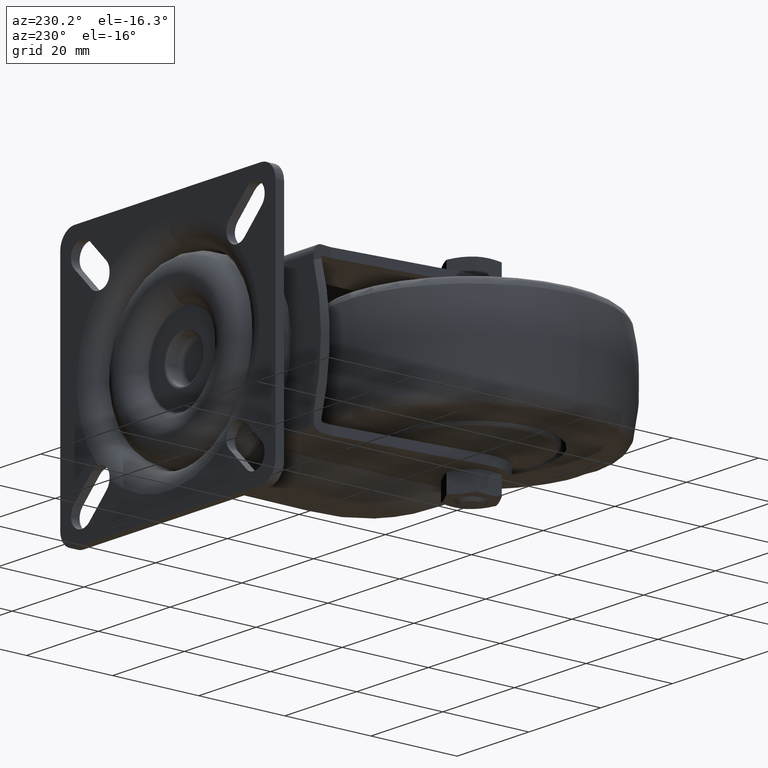
[diagram: clean part render]
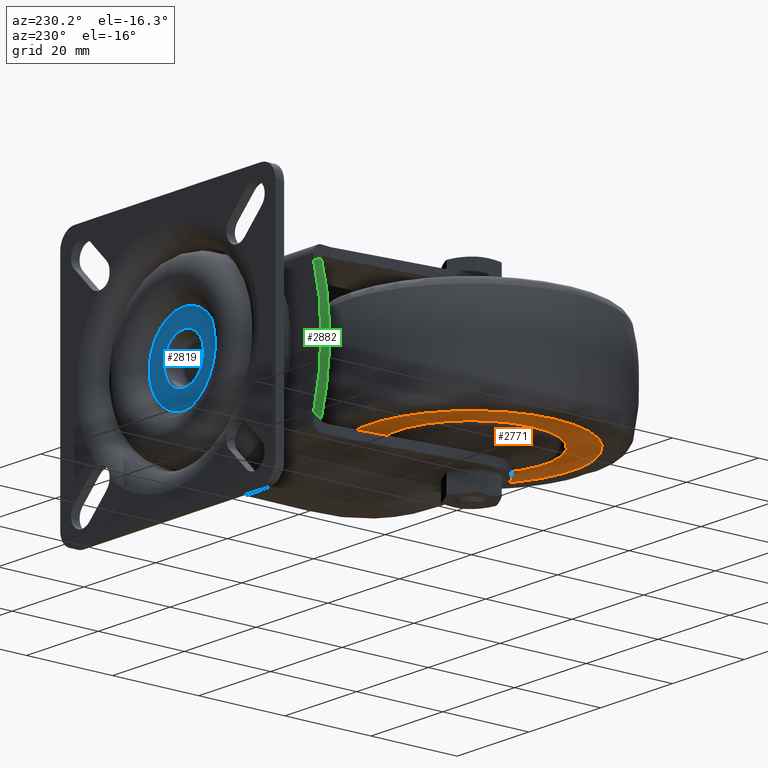
[diagram: same view with three faces highlighted in distinct colors, each labeled with its STEP entity id]
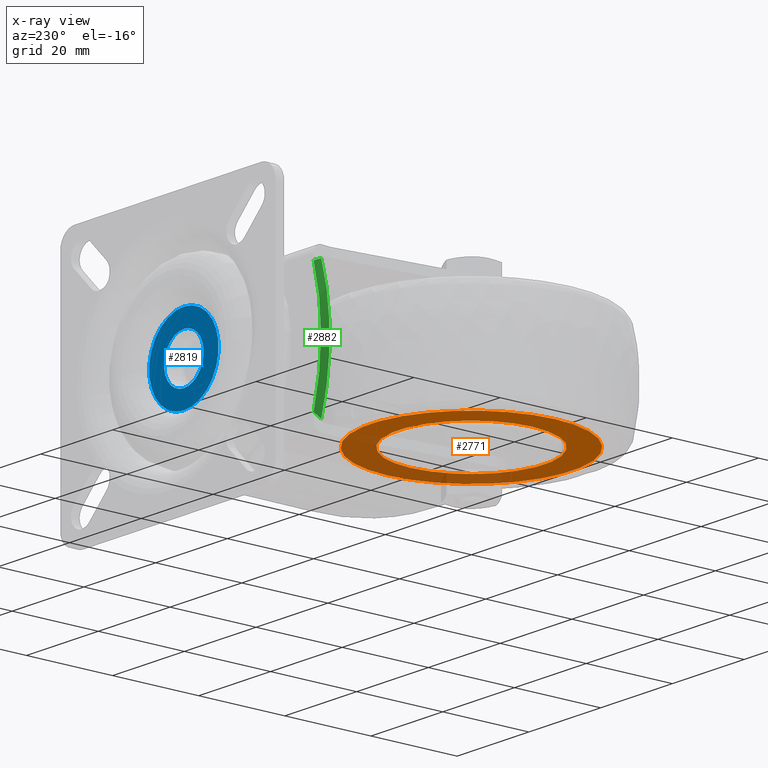
[diagram: x-ray of the same camera — body ghosted, the three highlighted faces saturated]
A machine part, auxiliary view with three faces highlighted in distinct colors.
The next image is the same camera in x-ray (body ghosted, the three faces saturated) — at least one of them is partly hidden behind the body in this view.
Their STEP definitions:

[orange] entity #2771 — the highlighted planar face has unit normal (0, 0, -1).
#487=FACE_BOUND('',#828,.T.);
#527=PLANE('',#3213);
#634=FACE_OUTER_BOUND('',#827,.T.);
#827=EDGE_LOOP('',(#2093));
#828=EDGE_LOOP('',(#2094));
#1025=CIRCLE('',#3212,23.3515);
#1026=CIRCLE('',#3214,17.0016);
#1265=VERTEX_POINT('',#4709);
#1266=VERTEX_POINT('',#4713);
#1567=EDGE_CURVE('',#1265,#1265,#1025,.T.);
#1568=EDGE_CURVE('',#1266,#1266,#1026,.T.);
#2093=ORIENTED_EDGE('',*,*,#1567,.F.);
#2094=ORIENTED_EDGE('',*,*,#1568,.T.);
#2771=ADVANCED_FACE('',(#634,#487),#527,.T.);
#3212=AXIS2_PLACEMENT_3D('',#4711,#3766,#3767);
#3213=AXIS2_PLACEMENT_3D('',#4712,#3768,#3769);
#3214=AXIS2_PLACEMENT_3D('',#4714,#3770,#3771);
#3766=DIRECTION('center_axis',(1.,0.,0.));
#3767=DIRECTION('ref_axis',(0.,0.,-1.));
#3768=DIRECTION('center_axis',(-1.,0.,0.));
#3769=DIRECTION('ref_axis',(0.,0.,1.));
#3770=DIRECTION('center_axis',(1.,0.,0.));
#3771=DIRECTION('ref_axis',(0.,0.,-1.));
#4709=CARTESIAN_POINT('',(2.,-2.85973397302894E-15,23.3515));
#4711=CARTESIAN_POINT('Origin',(2.,0.,0.));
#4712=CARTESIAN_POINT('Origin',(2.,23.3515,0.));
#4713=CARTESIAN_POINT('',(2.,-2.08209550203836E-15,17.0016));
#4714=CARTESIAN_POINT('Origin',(2.,0.,0.));

[blue] entity #2819 — the highlighted planar face has unit normal (0, -1, 0).
#495=FACE_BOUND('',#884,.T.);
#544=PLANE('',#3338);
#682=FACE_OUTER_BOUND('',#883,.T.);
#883=EDGE_LOOP('',(#2340));
#884=EDGE_LOOP('',(#2341));
#1091=CIRCLE('',#3336,5.51);
#1093=CIRCLE('',#3339,9.6700000000001);
#1386=VERTEX_POINT('',#5193);
#1387=VERTEX_POINT('',#5197);
#1728=EDGE_CURVE('',#1386,#1386,#1091,.T.);
#1730=EDGE_CURVE('',#1387,#1387,#1093,.T.);
#2340=ORIENTED_EDGE('',*,*,#1730,.F.);
#2341=ORIENTED_EDGE('',*,*,#1728,.T.);
#2819=ADVANCED_FACE('',(#682,#495),#544,.F.);
#3336=AXIS2_PLACEMENT_3D('',#5194,#4064,#4065);
#3338=AXIS2_PLACEMENT_3D('',#5196,#4068,#4069);
#3339=AXIS2_PLACEMENT_3D('',#5198,#4070,#4071);
#4064=DIRECTION('center_axis',(0.,-1.,0.));
#4065=DIRECTION('ref_axis',(0.,0.,-1.));
#4068=DIRECTION('center_axis',(0.,-1.,0.));
#4069=DIRECTION('ref_axis',(0.,0.,-1.));
#4070=DIRECTION('center_axis',(0.,-1.,0.));
#4071=DIRECTION('ref_axis',(0.,0.,-1.));
#5193=CARTESIAN_POINT('',(21.,49.285,5.51));
#5194=CARTESIAN_POINT('Origin',(21.,49.285,0.));
#5196=CARTESIAN_POINT('Origin',(26.51,49.285,0.));
#5197=CARTESIAN_POINT('',(21.,49.285,9.6700000000001));
#5198=CARTESIAN_POINT('Origin',(21.,49.285,0.));

[green] entity #2882 — the highlighted cylindrical surface (partial cylindrical patch) has radius 49.2469 mm, axis along (0, 1, 0).
#67=ELLIPSE('',#3275,393.620955135971,49.246923076923);
#76=ELLIPSE('',#3436,393.620955135971,49.246923076923);
#470=CYLINDRICAL_SURFACE('',#3456,49.246923076923);
#745=FACE_OUTER_BOUND('',#954,.T.);
#954=EDGE_LOOP('',(#2669,#2670,#2671,#2672));
#1064=CIRCLE('',#3304,49.246923076923);
#1138=CIRCLE('',#3439,49.246923076923);
#1302=VERTEX_POINT('',#4893);
#1303=VERTEX_POINT('',#4894);
#1348=VERTEX_POINT('',#5109);
#1442=VERTEX_POINT('',#5631);
#1631=EDGE_CURVE('',#1302,#1303,#67,.T.);
#1687=EDGE_CURVE('',#1302,#1348,#1064,.T.);
#1842=EDGE_CURVE('',#1442,#1348,#76,.T.);
#1845=EDGE_CURVE('',#1303,#1442,#1138,.T.);
#2669=ORIENTED_EDGE('',*,*,#1687,.F.);
#2670=ORIENTED_EDGE('',*,*,#1631,.T.);
#2671=ORIENTED_EDGE('',*,*,#1845,.T.);
#2672=ORIENTED_EDGE('',*,*,#1842,.T.);
#2882=ADVANCED_FACE('',(#745),#470,.T.);
#3275=AXIS2_PLACEMENT_3D('',#4895,#3903,#3904);
#3304=AXIS2_PLACEMENT_3D('',#5110,#3986,#3987);
#3436=AXIS2_PLACEMENT_3D('',#5632,#4316,#4317);
#3439=AXIS2_PLACEMENT_3D('',#5636,#4323,#4324);
#3456=AXIS2_PLACEMENT_3D('',#5663,#4361,#4362);
#3903=DIRECTION('center_axis',(-0.99214255466937,-0.12511255418277,0.));
#3904=DIRECTION('ref_axis',(-0.12511255418277,0.99214255466937,0.));
#3986=DIRECTION('center_axis',(0.,1.,0.));
#3987=DIRECTION('ref_axis',(1.,0.,0.));
#4316=DIRECTION('center_axis',(-0.99214255466937,-0.12511255418277,0.));
#4317=DIRECTION('ref_axis',(-0.12511255418277,0.99214255466937,0.));
#4323=DIRECTION('center_axis',(0.,1.,0.));
#4324=DIRECTION('ref_axis',(1.,0.,0.));
#4361=DIRECTION('center_axis',(0.,1.,0.));
#4362=DIRECTION('ref_axis',(0.,0.,1.));
#4893=CARTESIAN_POINT('',(-4.76208070617907,40.62,-14.1209431192967));
#4894=CARTESIAN_POINT('',(-4.5098738965952,38.62,-14.9377092738671));
#4895=CARTESIAN_POINT('Origin',(42.416923076923,-333.5095,-1.73472347597681E-15));
#5109=CARTESIAN_POINT('',(-4.76208070617906,40.62,14.1209431192967));
#5110=CARTESIAN_POINT('Origin',(42.416923076923,40.62,-1.73472347597681E-15));
#5631=CARTESIAN_POINT('',(-4.5098738965952,38.62,14.9377092738671));
#5632=CARTESIAN_POINT('Origin',(42.416923076923,-333.5095,-1.73472347597681E-15));
#5636=CARTESIAN_POINT('Origin',(42.416923076923,38.62,-1.73472347597681E-15));
#5663=CARTESIAN_POINT('Origin',(42.416923076923,38.62,-1.73472347597681E-15));